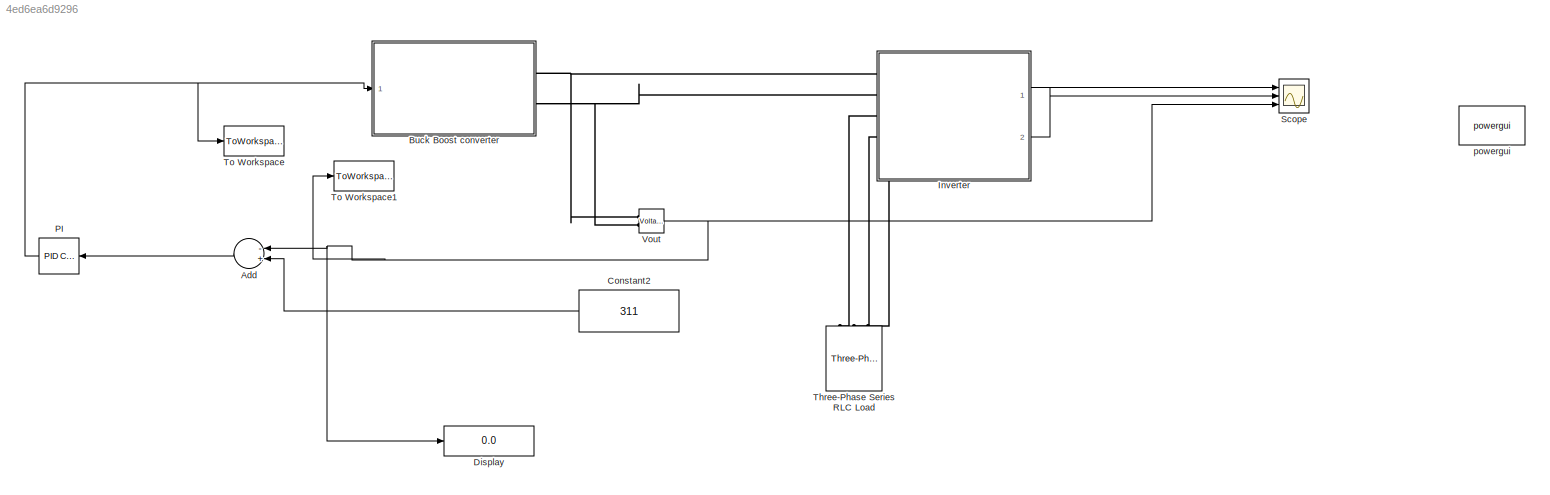
MODEL slx_4ed6ea6d9296
KIND model
CONFIG AbsTol = auto
CONFIG FixedStep = auto
CONFIG MaxStep = auto
CONFIG MinStep = auto
CONFIG RelTol = 1e-3
CONFIG SampleTimeConstraint = Unconstrained
CONFIG Solver = VariableStepAuto
CONFIG SolverMode = Auto
CONFIG SolverName = VariableStepAuto
CONFIG StartTime = 0.0
CONFIG StopTime = 20
BLOCK [Sum] Add
  InputSameDT = off
  Inputs = -+
  OutDataTypeStr = Inherit: Inherit via internal rule
  Ports = [2, 1]
  SaturateOnIntegerOverflow = off
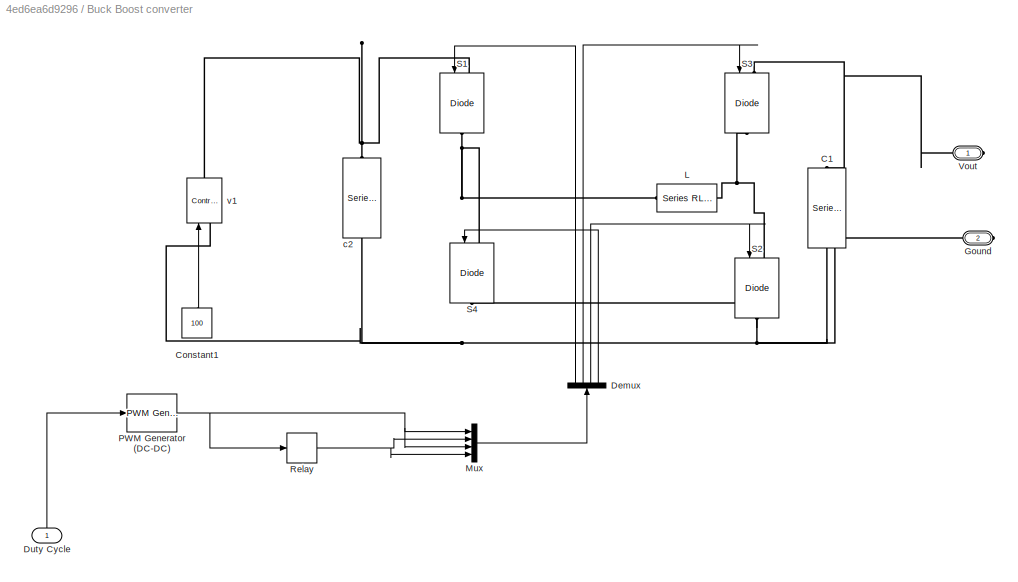
BLOCK [SubSystem] Buck Boost converter
  Ports = [1, 0, 0, 0, 0, 0, 2]
  RequestExecContextInheritance = off
  Variant = off
BLOCK [Reference] Buck Boost converter/C1   REF=powerlib/Elements/Series RLC Branch
  Ports = [0, 0, 0, 0, 0, 1, 1]
  SourceBlock = powerlib/Elements/Series RLC Branch
  SourceType = Series RLC Branch
BLOCK [Constant] Buck Boost converter/Constant1
  Value = 100
BLOCK [Demux] Buck Boost converter/Demux
  DisplayOption = bar
  Ports = [1, 4]
BLOCK [Inport] Buck Boost converter/Duty Cycle
  IconDisplay = Port number
BLOCK [PMIOPort] Buck Boost converter/Gound
  Port = 2
  Side = Right
BLOCK [Reference] Buck Boost converter/L   REF=powerlib/Elements/Series RLC Branch
  Ports = [0, 0, 0, 0, 0, 1, 1]
  SourceBlock = powerlib/Elements/Series RLC Branch
  SourceType = Series RLC Branch
BLOCK [Mux] Buck Boost converter/Mux
  DisplayOption = bar
  Ports = [4, 1]
BLOCK [Reference] Buck Boost converter/PWM Generator (DC-DC)  REF=powerlib_meascontrol/Pulse & Signal
Generators/PWM Generator
(DC-DC)
  Ports = [1, 1]
  SourceBlock = powerlib_meascontrol/Pulse & Signal\nGenerators/PWM Generator\n(DC-DC)
  SourceType = PWM Generator (DC-DC)
BLOCK [Relay] Buck Boost converter/Relay
  InputProcessing = Elements as channels (sample based)
  OffOutputValue = 1
  OnOutputValue = 0
BLOCK [Reference] Buck Boost converter/S1  REF=powerlib/Power
Electronics/IGBT//Diode
  Ports = [1, 0, 0, 0, 0, 1, 1]
  SourceBlock = powerlib/Power\nElectronics/IGBT//Diode
  SourceType = IGBT/Diode
BLOCK [Reference] Buck Boost converter/S2  REF=powerlib/Power
Electronics/IGBT//Diode
  Ports = [1, 0, 0, 0, 0, 1, 1]
  SourceBlock = powerlib/Power\nElectronics/IGBT//Diode
  SourceType = IGBT/Diode
BLOCK [Reference] Buck Boost converter/S3  REF=powerlib/Power
Electronics/IGBT//Diode
  Ports = [1, 0, 0, 0, 0, 1, 1]
  SourceBlock = powerlib/Power\nElectronics/IGBT//Diode
  SourceType = IGBT/Diode
BLOCK [Reference] Buck Boost converter/S4  REF=powerlib/Power
Electronics/IGBT//Diode
  Ports = [1, 0, 0, 0, 0, 1, 1]
  SourceBlock = powerlib/Power\nElectronics/IGBT//Diode
  SourceType = IGBT/Diode
BLOCK [PMIOPort] Buck Boost converter/Vout
  Port = 1
  Side = Right
BLOCK [Reference] Buck Boost converter/c2   REF=powerlib/Elements/Series RLC Branch
  Ports = [0, 0, 0, 0, 0, 1, 1]
  SourceBlock = powerlib/Elements/Series RLC Branch
  SourceType = Series RLC Branch
BLOCK [Reference] Buck Boost converter/v1   REF=powerlib/Electrical
Sources/Controlled Voltage Source
  Ports = [1, 0, 0, 0, 0, 1, 1]
  SourceBlock = powerlib/Electrical\nSources/Controlled Voltage Source
  SourceType = Controlled Voltage Source
BLOCK [Constant] Constant2
  Value = 311
BLOCK [Display] Display
  Decimation = 1
  Ports = [1]
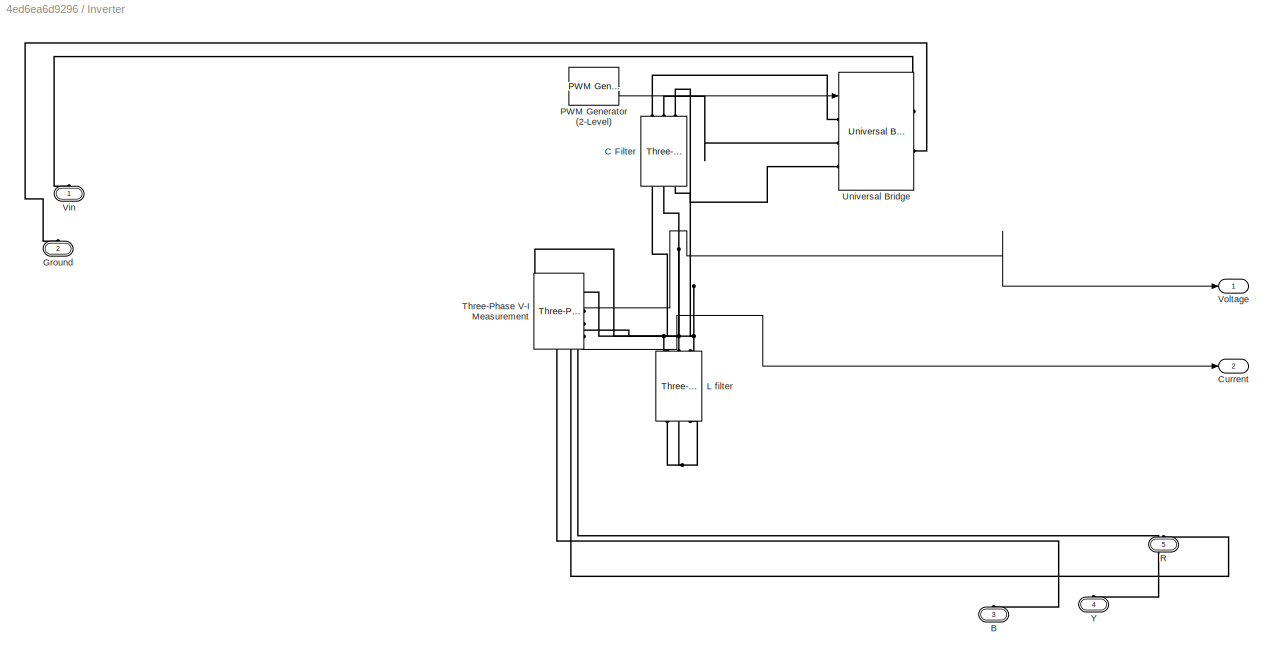
BLOCK [SubSystem] Inverter
  Ports = [0, 2, 0, 0, 0, 5]
  RequestExecContextInheritance = off
  Variant = off
BLOCK [PMIOPort] Inverter/B
  Port = 3
  Side = Left
BLOCK [Reference] Inverter/C Filter  REF=powerlib/Elements/Three-Phase
Series RLC Branch
  AttributesFormatString = \n
  Ports = [0, 0, 0, 0, 0, 3, 3]
  SourceBlock = powerlib/Elements/Three-Phase\nSeries RLC Branch
  SourceType = Three-Phase Series RLC Branch
BLOCK [Outport] Inverter/Current
  IconDisplay = Port number
  Port = 2
BLOCK [PMIOPort] Inverter/Ground
  Port = 2
  Side = Left
BLOCK [Reference] Inverter/L filter  REF=powerlib/Elements/Three-Phase
Series RLC Branch
  AttributesFormatString = \n
  Ports = [0, 0, 0, 0, 0, 3, 3]
  SourceBlock = powerlib/Elements/Three-Phase\nSeries RLC Branch
  SourceType = Three-Phase Series RLC Branch
BLOCK [Reference] Inverter/PWM Generator (2-Level)  REF=powerlib_meascontrol/Pulse & Signal
Generators/PWM Generator
(2-Level)
  Ports = [0, 1]
  SourceBlock = powerlib_meascontrol/Pulse & Signal\nGenerators/PWM Generator\n(2-Level)
  SourceType = PWM Generator (2-Level)
BLOCK [PMIOPort] Inverter/R
  Port = 5
  Side = Left
BLOCK [Reference] Inverter/Three-Phase V-I Measurement  REF=powerlib/Measurements/Three-Phase
V-I Measurement
  Ports = [0, 2, 0, 0, 0, 3, 3]
  SourceBlock = powerlib/Measurements/Three-Phase\nV-I Measurement
  SourceType = Three-Phase VI Measurement
BLOCK [Reference] Inverter/Universal Bridge  REF=powerlib/Power
Electronics/Universal Bridge
  Ports = [1, 0, 0, 0, 0, 3, 2]
  SourceBlock = powerlib/Power\nElectronics/Universal Bridge
  SourceType = Universal Bridge
BLOCK [PMIOPort] Inverter/Vin
  Port = 1
  Side = Left
BLOCK [Outport] Inverter/Voltage
  IconDisplay = Port number
BLOCK [PMIOPort] Inverter/Y
  Port = 4
  Side = Left
BLOCK [Reference] PI  REF=simulink/Continuous/PID Controller
  Ports = [1, 1]
  SourceBlock = simulink/Continuous/PID Controller
  SourceType = PID 1dof
BLOCK [Scope] Scope
  NumInputPorts = 3
  Ports = [3]
  ScopeSpecificationString = Simulink.scopes.TimeScopeBlockCfg('CurrentConfiguration', extmgr.ConfigurationSet(extmgr.Configuration('Core','General UI',true),extmgr.Configuration('Core','Source UI',true),extmgr.Configuration('Sources','WiredSimulink',true),extmgr.Configuration('Visuals','Time Domain',true,'SerializedDisplays',{struct('MinYLimReal','-172.37705','MaxYLimReal','172.29452','YLabelReal','','MinYLimMag',' 0.00000',...<+3143ch>
BLOCK [Reference] Three-Phase Series RLC Load  REF=powerlib/Elements/Three-Phase
Series RLC Load
  AttributesFormatString = \n
  Ports = [0, 0, 0, 0, 0, 3]
  SourceBlock = powerlib/Elements/Three-Phase\nSeries RLC Load
  SourceType = Three-Phase Series RLC Load
BLOCK [ToWorkspace] To Workspace
  FixptAsFi = on
  MaxDataPoints = inf
  Ports = [1]
  SampleTime = -1
  Save2DSignal = 3-D array (concatenate along third dimension)
  SaveFormat = Timeseries
  VariableName = input
BLOCK [ToWorkspace] To Workspace1
  FixptAsFi = on
  MaxDataPoints = inf
  Ports = [1]
  SampleTime = -1
  Save2DSignal = 3-D array (concatenate along third dimension)
  SaveFormat = Timeseries
  VariableName = output
BLOCK [Reference] Vout  REF=powerlib/Measurements/Voltage Measurement
  Ports = [0, 1, 0, 0, 0, 2]
  SourceBlock = powerlib/Measurements/Voltage Measurement
  SourceType = Voltage Measurement
  UserDataPersistent = on
BLOCK [Reference] powergui  REF=powerlib/powergui
  Ports = []
  Priority = 1
  SourceBlock = powerlib/powergui
  SourceType = PSB option menu block
  UserDataPersistent = on
LINE Add:1 -> PI:1
LINE Buck Boost converter/Constant1:1 -> Buck Boost converter/v1 :1
LINE Buck Boost converter/Demux:1 -> Buck Boost converter/S1:1
LINE Buck Boost converter/Demux:2 -> Buck Boost converter/S3:1
LINE Buck Boost converter/Demux:3 -> Buck Boost converter/S2:1
LINE Buck Boost converter/Demux:4 -> Buck Boost converter/S4:1
LINE Buck Boost converter/Duty Cycle:1 -> Buck Boost converter/PWM Generator (DC-DC):1
LINE Buck Boost converter/Mux:1 -> Buck Boost converter/Demux:1
NET Buck Boost converter/PWM Generator (DC-DC):1 -> Buck Boost converter/Mux:1, Buck Boost converter/Mux:3, Buck Boost converter/Relay:1
NET Buck Boost converter/Relay:1 -> Buck Boost converter/Mux:2, Buck Boost converter/Mux:4
LINE Constant2:1 -> Add:2
LINE Inverter/PWM Generator (2-Level):1 -> Inverter/Universal Bridge:1
LINE Inverter/Three-Phase V-I Measurement:1 -> Inverter/Voltage:1
LINE Inverter/Three-Phase V-I Measurement:2 -> Inverter/Current:1
LINE Inverter:1 -> Scope:1
LINE Inverter:2 -> Scope:2
NET PI:1 -> Buck Boost converter:1, To Workspace:1
NET Vout:1 -> Add:1, Display:1, Scope:3, To Workspace1:1
PNET net1: Buck Boost converter/C1 :LConn1 -- Buck Boost converter/S3:LConn1 -- Buck Boost converter/Vout:RConn1
PNET net2: Buck Boost converter/C1 :RConn1 -- Buck Boost converter/Gound:RConn1 -- Buck Boost converter/S2:RConn1 -- Buck Boost converter/S4:RConn1 -- Buck Boost converter/c2 :RConn1 -- Buck Boost converter/v1 :LConn1
PNET net3: Buck Boost converter/L :LConn1 -- Buck Boost converter/S2:LConn1 -- Buck Boost converter/S3:RConn1
PNET net4: Buck Boost converter/L :RConn1 -- Buck Boost converter/S1:RConn1 -- Buck Boost converter/S4:LConn1
PNET net5: Buck Boost converter/S1:LConn1 -- Buck Boost converter/c2 :LConn1 -- Buck Boost converter/v1 :RConn1
PNET net6: Buck Boost converter:RConn1 -- Inverter:LConn1 -- Vout:LConn1
PNET net7: Buck Boost converter:RConn2 -- Inverter:LConn2 -- Vout:LConn2
PLINE Inverter/B:RConn1 -- Inverter/Three-Phase V-I Measurement:RConn1
PLINE Inverter/C Filter:LConn1 -- Inverter/Universal Bridge:LConn1
PLINE Inverter/C Filter:LConn2 -- Inverter/Universal Bridge:LConn2
PLINE Inverter/C Filter:LConn3 -- Inverter/Universal Bridge:LConn3
PNET net8: Inverter/C Filter:RConn1 -- Inverter/L filter:LConn1 -- Inverter/Three-Phase V-I Measurement:LConn1
PNET net9: Inverter/C Filter:RConn2 -- Inverter/L filter:LConn2 -- Inverter/Three-Phase V-I Measurement:LConn2
PNET net10: Inverter/C Filter:RConn3 -- Inverter/L filter:LConn3 -- Inverter/Three-Phase V-I Measurement:LConn3
PLINE Inverter/Ground:RConn1 -- Inverter/Universal Bridge:RConn2
PNET net11: Inverter/L filter:RConn1 -- Inverter/L filter:RConn2 -- Inverter/L filter:RConn3
PLINE Inverter/R:RConn1 -- Inverter/Three-Phase V-I Measurement:RConn3
PLINE Inverter/Three-Phase V-I Measurement:RConn2 -- Inverter/Y:RConn1
PLINE Inverter/Universal Bridge:RConn1 -- Inverter/Vin:RConn1
PLINE Inverter:LConn3 -- Three-Phase Series RLC Load:LConn1
PLINE Inverter:LConn4 -- Three-Phase Series RLC Load:LConn2
PLINE Inverter:LConn5 -- Three-Phase Series RLC Load:LConn3
note: NET lines group one-source signal fan-out (src -> all destinations, sorted); 1:1 wires keep LINE; PNET lines group multi-terminal physical nets as a canonical sorted terminal list (undirected conserving connections); 2-terminal nets keep the pairwise PLINE form
